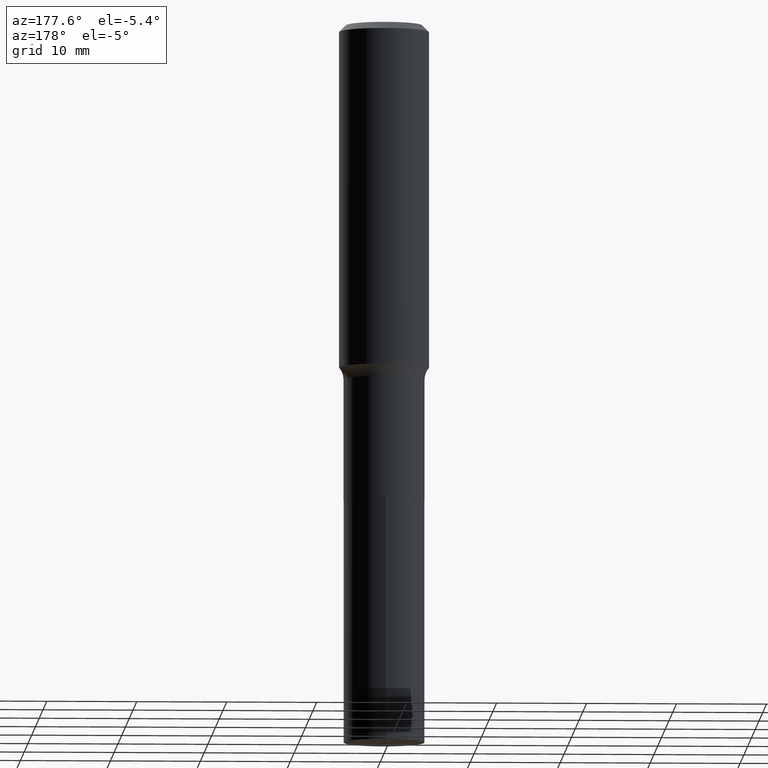
[diagram: clean part render]
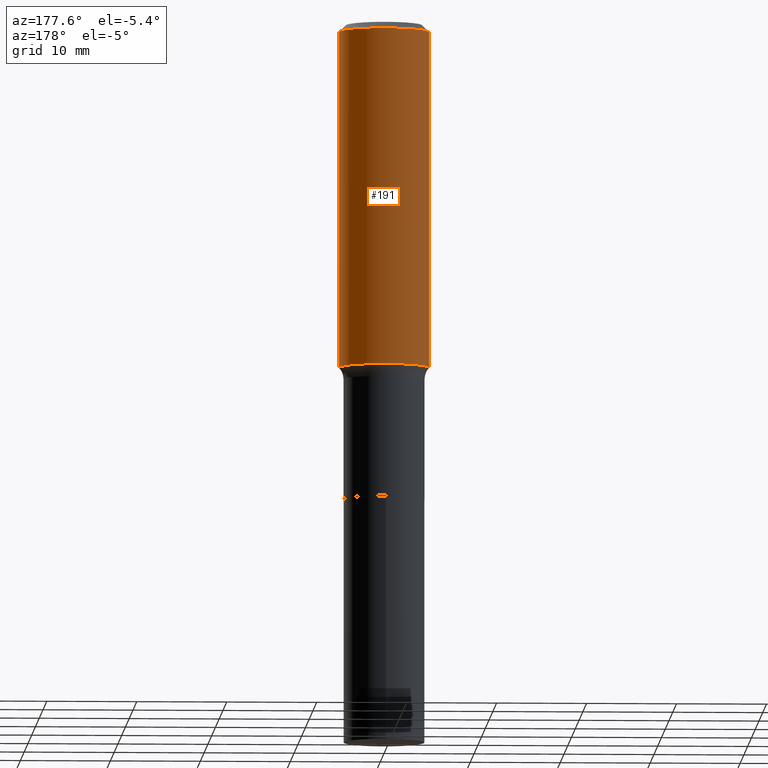
[diagram: same view with one face highlighted and labeled with its STEP entity id]
A machine part, auxiliary view. The second image highlights one B-rep face of the part: STEP entity #191.
In plain terms, the highlighted cylindrical surface (partial cylindrical patch) has radius 5 mm, axis along (-0, 0, 1).
Its self-contained STEP definition (entity closure, byte-faithful):
#9 = CIRCLE ( 'NONE', #291, 0.1968500000000001915 ) ;
#11 = VERTEX_POINT ( 'NONE', #175 ) ;
#29 = DIRECTION ( 'NONE',  ( -2.445468806185136597E-29, 3.491481338843145583E-15, 1.000000000000000000 ) ) ;
#36 = FACE_OUTER_BOUND ( 'NONE', #453, .T. ) ;
#41 = DIRECTION ( 'NONE',  ( -2.445468806185136877E-29, 3.491481338843145188E-15, 1.000000000000000000 ) ) ;
#43 = CARTESIAN_POINT ( 'NONE',  ( -0.1968500000000001915, -3.848738541785168331E-15, -1.502927098234926984 ) ) ;
#62 = EDGE_CURVE ( 'NONE', #11, #463, #152, .T. ) ;
#68 = LINE ( 'NONE', #194, #270 ) ;
#97 = CARTESIAN_POINT ( 'NONE',  ( -0.1968500000000000250, -1.276564940837051115E-15, -0.02952750000000016820 ) ) ;
#105 = CARTESIAN_POINT ( 'NONE',  ( 0.000000000000000000, 0.000000000000000000, 0.000000000000000000 ) ) ;
#121 = LINE ( 'NONE', #162, #197 ) ;
#122 = VERTEX_POINT ( 'NONE', #465 ) ;
#152 = CIRCLE ( 'NONE', #448, 0.1968500000000000250 ) ;
#158 = CYLINDRICAL_SURFACE ( 'NONE', #403, 0.1968500000000001082 ) ;
#162 = CARTESIAN_POINT ( 'NONE',  ( 0.1968500000000001082, -1.374596203102542397E-15, 9.598753983154305062E-30 ) ) ;
#175 = CARTESIAN_POINT ( 'NONE',  ( 0.1968500000000000250, -1.477690918335233294E-15, -0.02952750000000016820 ) ) ;
#182 = ORIENTED_EDGE ( 'NONE', *, *, #62, .F. ) ;
#187 = DIRECTION ( 'NONE',  ( 1.000000000000000000, -6.982962677686266711E-15, 0.000000000000000000 ) ) ;
#189 = DIRECTION ( 'NONE',  ( 1.000000000000000000, -6.982962677686265922E-15, 0.000000000000000000 ) ) ;
#191 = ADVANCED_FACE ( 'NONE', ( #36 ), #158, .T. ) ;
#194 = CARTESIAN_POINT ( 'NONE',  ( -0.1968500000000001082, 1.398703375343757985E-15, -9.682923725166787881E-30 ) ) ;
#197 = VECTOR ( 'NONE', #41, 39.37007874015748143 ) ;
#198 = EDGE_CURVE ( 'NONE', #212, #463, #68, .T. ) ;
#212 = VERTEX_POINT ( 'NONE', #43 ) ;
#247 = ORIENTED_EDGE ( 'NONE', *, *, #367, .T. ) ;
#252 = EDGE_CURVE ( 'NONE', #122, #11, #121, .T. ) ;
#258 = DIRECTION ( 'NONE',  ( -2.445468806185136597E-29, 3.491481338843145583E-15, 1.000000000000000000 ) ) ;
#270 = VECTOR ( 'NONE', #339, 39.37007874015748143 ) ;
#288 = ORIENTED_EDGE ( 'NONE', *, *, #252, .F. ) ;
#291 = AXIS2_PLACEMENT_3D ( 'NONE', #329, #29, #187 ) ;
#329 = CARTESIAN_POINT ( 'NONE',  ( 3.675361336703858371E-29, -5.247441917128926908E-15, -1.502927098234926984 ) ) ;
#337 = DIRECTION ( 'NONE',  ( -2.445468806185136597E-29, 3.491481338843145583E-15, 1.000000000000000000 ) ) ;
#339 = DIRECTION ( 'NONE',  ( -2.445468806185136877E-29, 3.491481338843145188E-15, 1.000000000000000000 ) ) ;
#367 = EDGE_CURVE ( 'NONE', #122, #212, #9, .T. ) ;
#368 = CARTESIAN_POINT ( 'NONE',  ( 7.220858017463203355E-31, -1.030947152326915746E-16, -0.02952750000000016820 ) ) ;
#383 = ORIENTED_EDGE ( 'NONE', *, *, #198, .T. ) ;
#402 = DIRECTION ( 'NONE',  ( 1.000000000000000000, -6.982962677686266711E-15, 4.876176775795935793E-29 ) ) ;
#403 = AXIS2_PLACEMENT_3D ( 'NONE', #105, #258, #402 ) ;
#448 = AXIS2_PLACEMENT_3D ( 'NONE', #368, #337, #189 ) ;
#453 = EDGE_LOOP ( 'NONE', ( #247, #383, #182, #288 ) ) ;
#463 = VERTEX_POINT ( 'NONE', #97 ) ;
#465 = CARTESIAN_POINT ( 'NONE',  ( 0.1968500000000001915, -6.622038120231470094E-15, -1.502927098234926984 ) ) ;